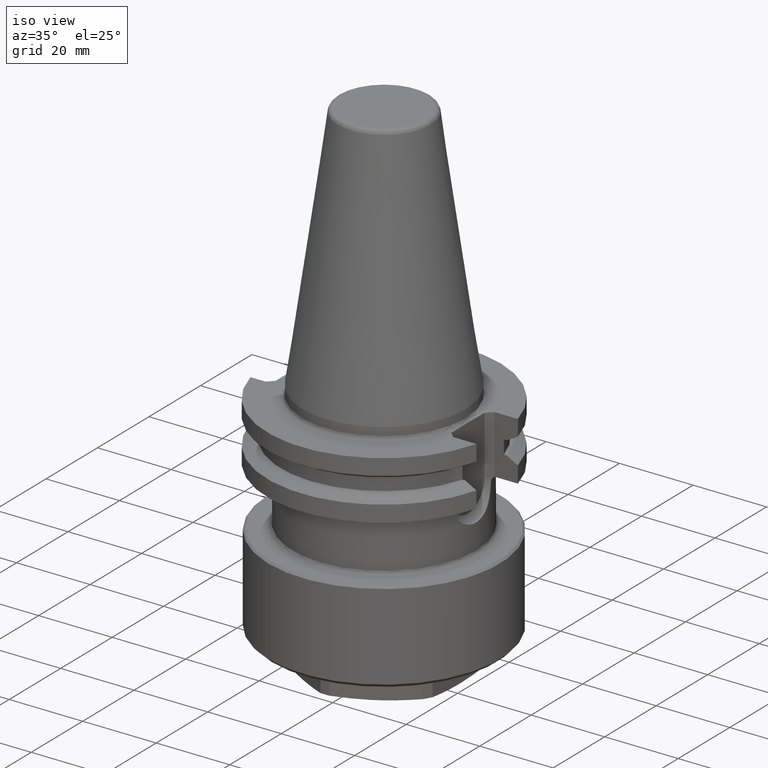
[diagram: clean part render]
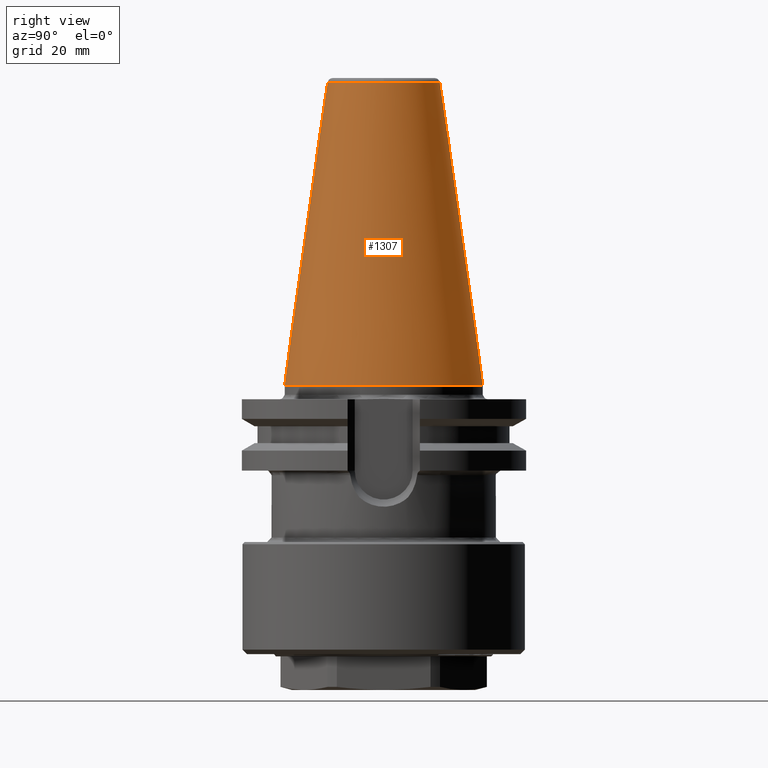
[diagram: tour spotlight — one face highlighted and labeled with its STEP entity id]
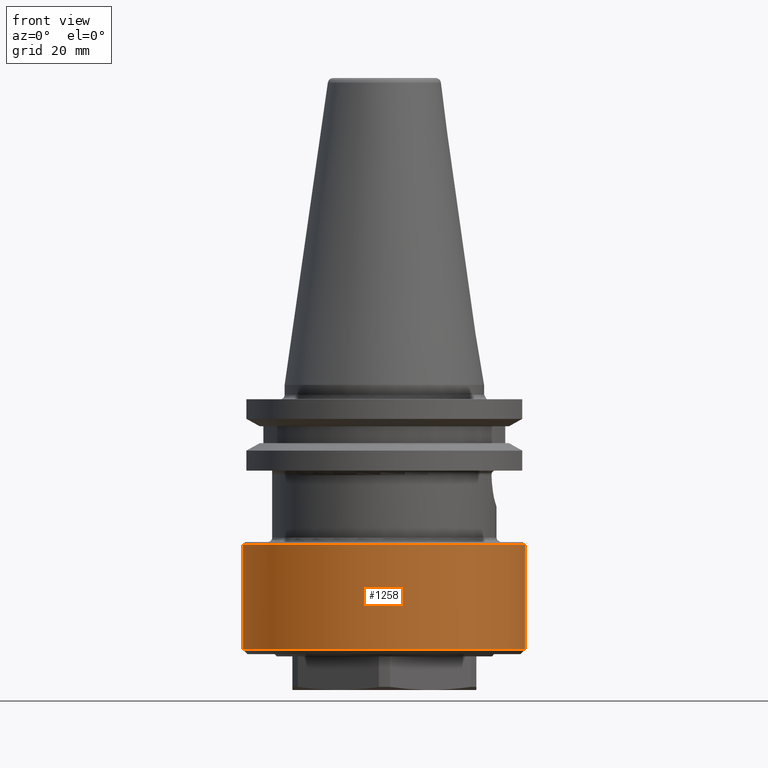
[diagram: tour spotlight — one face highlighted and labeled with its STEP entity id]
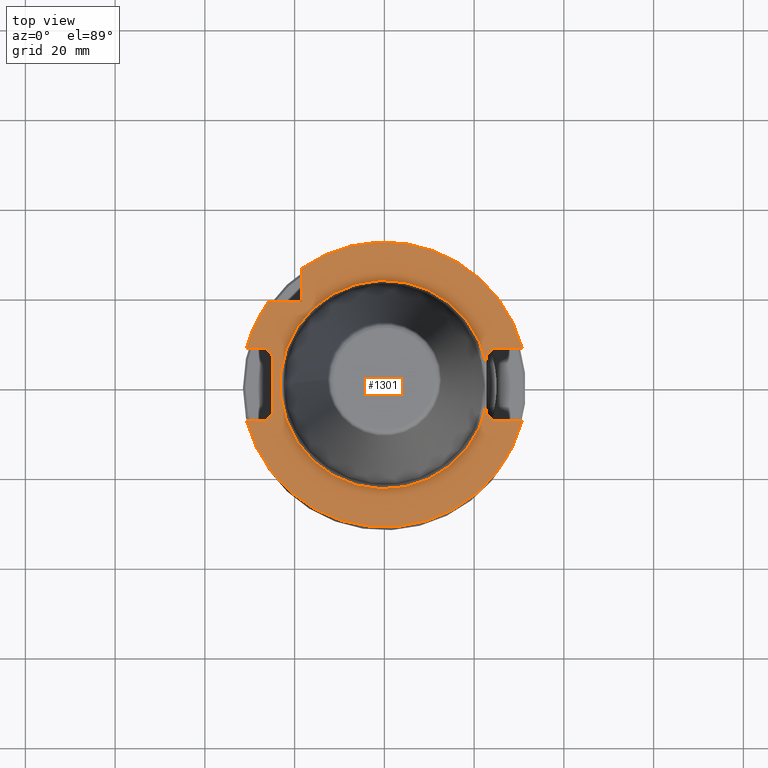
[diagram: tour spotlight — one face highlighted and labeled with its STEP entity id]
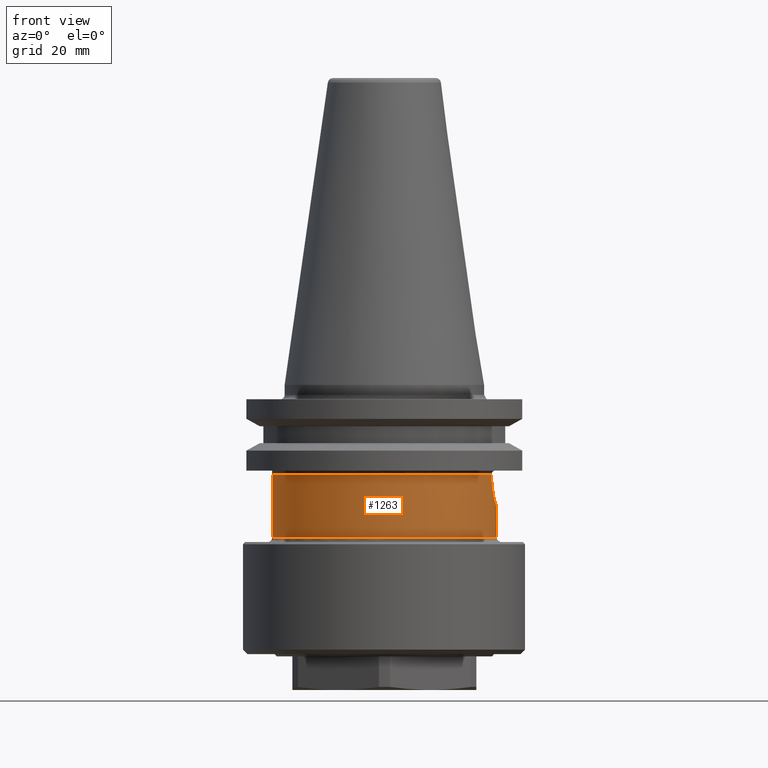
[diagram: tour spotlight — one face highlighted and labeled with its STEP entity id]
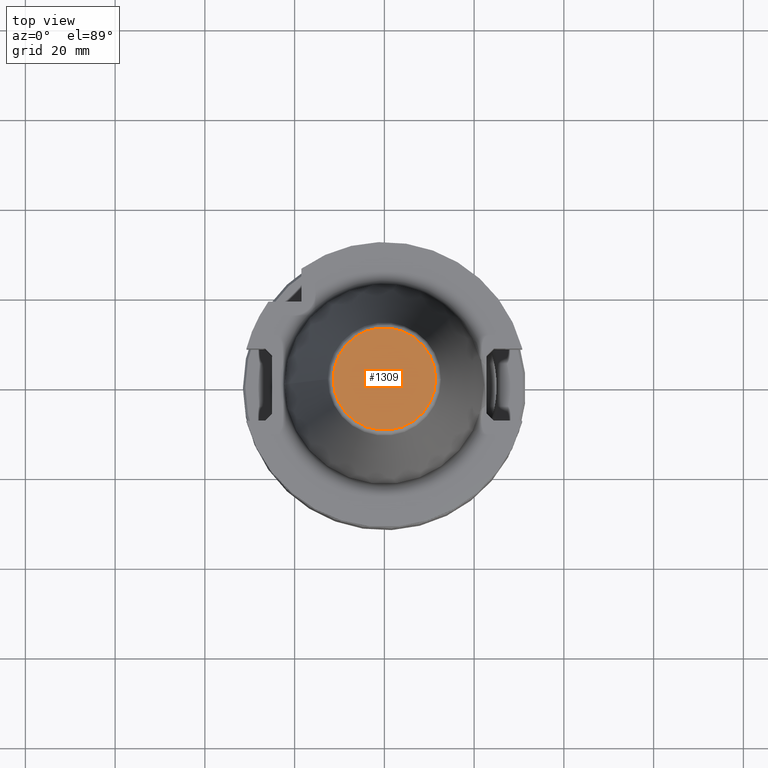
[diagram: tour spotlight — one face highlighted and labeled with its STEP entity id]
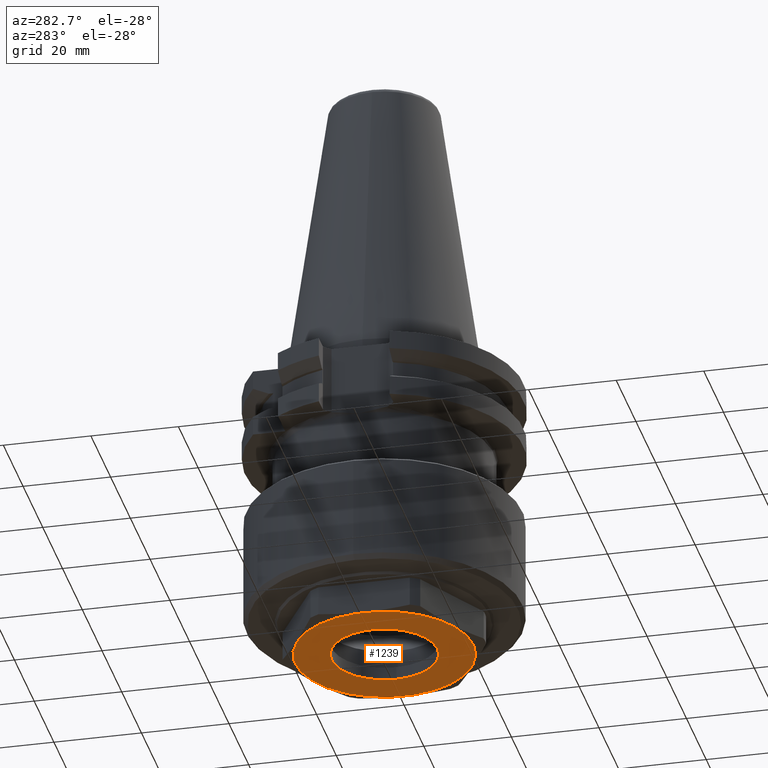
[diagram: tour spotlight — one face highlighted and labeled with its STEP entity id]
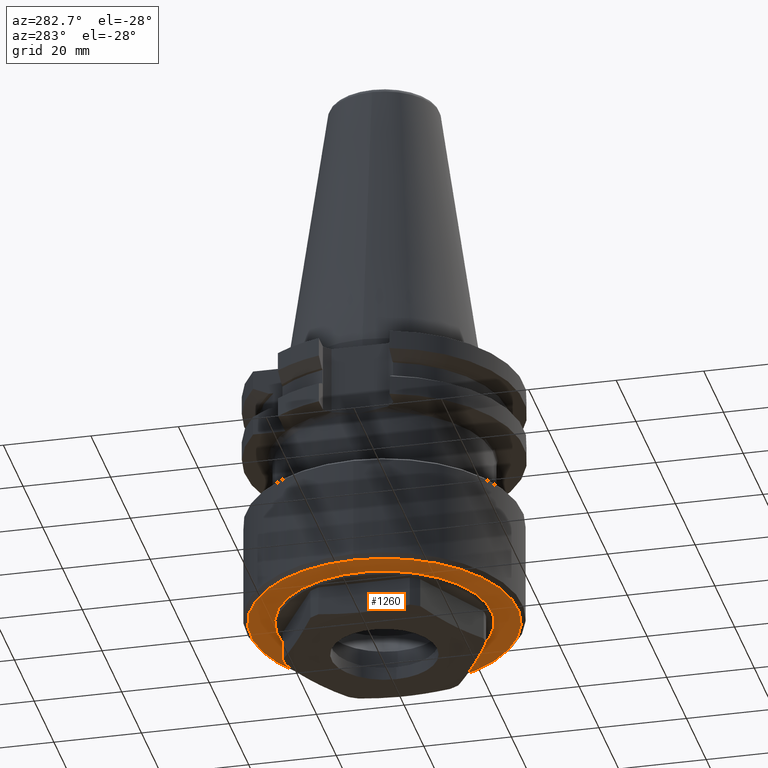
[diagram: tour spotlight — one face highlighted and labeled with its STEP entity id]
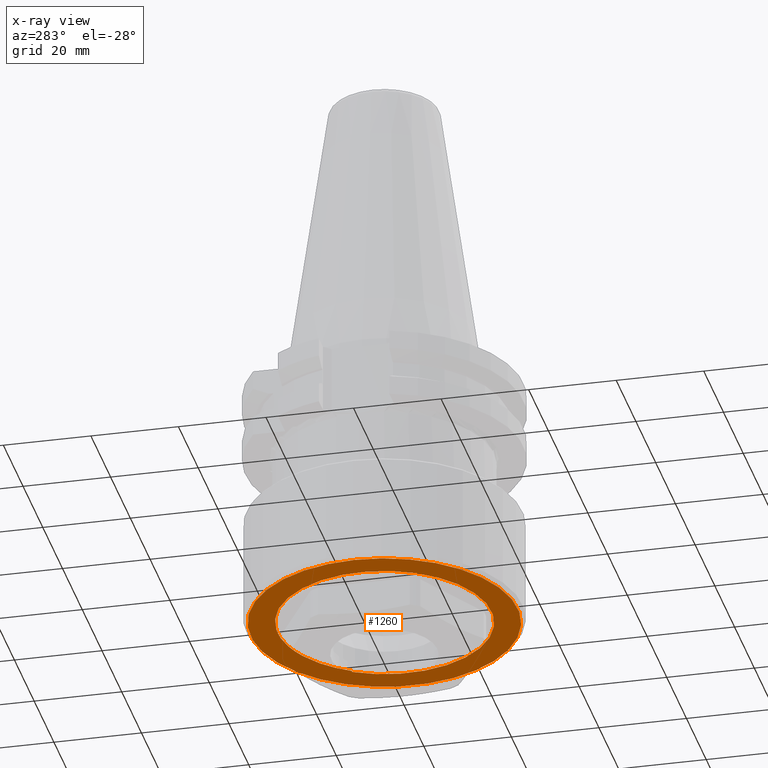
[diagram: x-ray of the same camera — body ghosted, this tour face saturated]
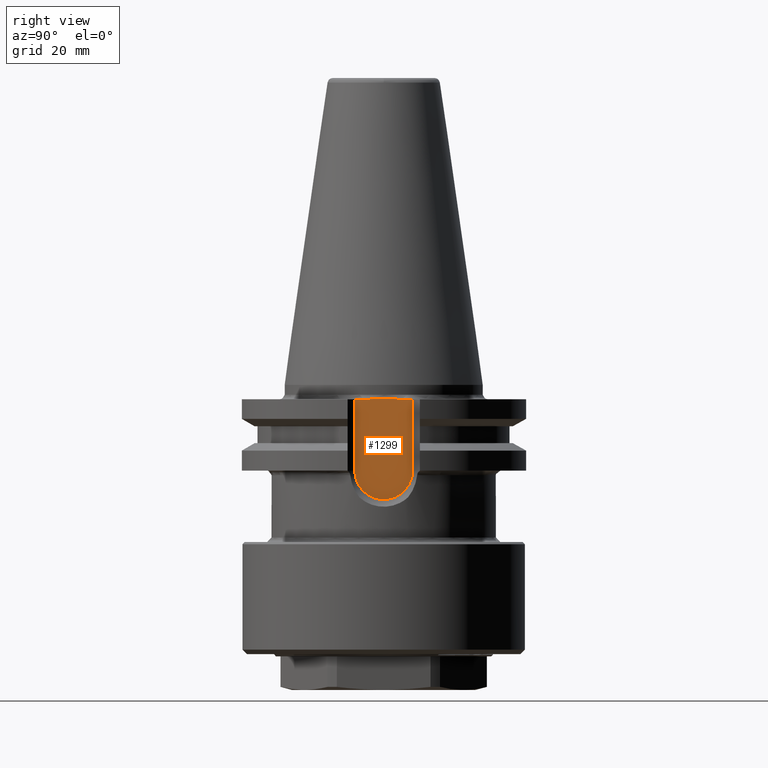
[diagram: tour spotlight — one face highlighted and labeled with its STEP entity id]
A machine part: a face-by-face anatomy tour. The part has 78 B-rep faces; the first image is the clean iso view, then the 8 largest visible faces are spotlighted one at a time (largest first), each with its STEP entity span.

Face 1 — right view, entity #1307. In plain terms, the highlighted conical surface has half-angle 8.13 deg.
Definition (entity closure, byte-faithful):
#262=CONICAL_SURFACE('',#1452,22.225,0.141897013516391);
#613=ORIENTED_EDGE('',*,*,#806,.T.);
#614=ORIENTED_EDGE('',*,*,#748,.F.);
#748=EDGE_CURVE('',#901,#901,#989,.T.);
#806=EDGE_CURVE('',#934,#934,#998,.F.);
#901=VERTEX_POINT('',#2254);
#934=VERTEX_POINT('',#2404);
#989=CIRCLE('',#1419,22.225);
#998=CIRCLE('',#1453,12.600759170466);
#1087=EDGE_LOOP('',(#613));
#1088=EDGE_LOOP('',(#614));
#1186=FACE_BOUND('',#1087,.T.);
#1187=FACE_BOUND('',#1088,.T.);
#1307=ADVANCED_FACE('',(#1186,#1187),#262,.T.);
#1419=AXIS2_PLACEMENT_3D('',#2253,#1695,#1696);
#1452=AXIS2_PLACEMENT_3D('',#2402,#1799,#1800);
#1453=AXIS2_PLACEMENT_3D('',#2403,#1801,#1802);
#1695=DIRECTION('',(0.,2.22044604925031E-16,-1.));
#1696=DIRECTION('',(-1.,0.,0.));
#1799=DIRECTION('',(0.,2.22044604925031E-16,-1.));
#1800=DIRECTION('',(-1.,0.,0.));
#1801=DIRECTION('',(0.,-2.22044604925031E-16,1.));
#1802=DIRECTION('',(1.,0.,0.));
#2253=CARTESIAN_POINT('',(0.,0.,0.));
#2254=CARTESIAN_POINT('',(-22.225,0.,0.));
#2402=CARTESIAN_POINT('',(0.,0.,0.));
#2403=CARTESIAN_POINT('',(0.,-1.49590796591326E-14,67.369705578675));
#2404=CARTESIAN_POINT('',(12.600759170466,-1.49590796591326E-14,67.369705578675));

Face 2 — front view, entity #1258. In plain terms, the highlighted cylindrical surface (bore or boss wall) has radius 31.5 mm, axis along (0, 0, -1).
Definition (entity closure, byte-faithful):
#34=CYLINDRICAL_SURFACE('',#1364,31.5);
#356=ORIENTED_EDGE('',*,*,#679,.T.);
#357=ORIENTED_EDGE('',*,*,#680,.F.);
#679=EDGE_CURVE('',#847,#847,#959,.T.);
#680=EDGE_CURVE('',#848,#848,#960,.T.);
#847=VERTEX_POINT('',#2059);
#848=VERTEX_POINT('',#2061);
#959=CIRCLE('',#1365,31.5);
#960=CIRCLE('',#1366,31.5);
#1029=EDGE_LOOP('',(#356));
#1030=EDGE_LOOP('',(#357));
#1128=FACE_BOUND('',#1029,.T.);
#1129=FACE_BOUND('',#1030,.T.);
#1258=ADVANCED_FACE('',(#1128,#1129),#34,.T.);
#1364=AXIS2_PLACEMENT_3D('',#2057,#1561,#1562);
#1365=AXIS2_PLACEMENT_3D('',#2058,#1563,#1564);
#1366=AXIS2_PLACEMENT_3D('',#2060,#1565,#1566);
#1561=DIRECTION('',(0.,2.22044604925031E-16,-1.));
#1562=DIRECTION('',(-1.,0.,0.));
#1563=DIRECTION('',(0.,2.22044604925031E-16,-1.));
#1564=DIRECTION('',(-1.,0.,0.));
#1565=DIRECTION('',(0.,2.22044604925031E-16,-1.));
#1566=DIRECTION('',(-1.,0.,0.));
#2057=CARTESIAN_POINT('',(0.,-1.26565424807268E-14,57.));
#2058=CARTESIAN_POINT('',(0.,7.88258347483861E-15,-35.5));
#2059=CARTESIAN_POINT('',(-31.5,7.88258347483861E-15,-35.5));
#2060=CARTESIAN_POINT('',(0.,1.31006316905769E-14,-59.));
#2061=CARTESIAN_POINT('',(-31.5,1.31006316905769E-14,-59.));

Face 3 — top view, entity #1301. In plain terms, the highlighted planar face has unit normal (0, -0, 1).
Definition (entity closure, byte-faithful):
#104=LINE('',#2278,#187);
#107=LINE('',#2295,#190);
#109=LINE('',#2299,#192);
#111=LINE('',#2308,#194);
#113=LINE('',#2321,#196);
#115=LINE('',#2329,#198);
#118=LINE('',#2337,#201);
#120=LINE('',#2341,#203);
#123=LINE('',#2349,#206);
#125=LINE('',#2363,#208);
#128=LINE('',#2380,#211);
#129=LINE('',#2381,#212);
#132=LINE('',#2386,#215);
#187=VECTOR('',#1716,1000.);
#190=VECTOR('',#1725,1000.);
#192=VECTOR('',#1729,1000.);
#194=VECTOR('',#1733,1000.);
#196=VECTOR('',#1737,1000.);
#198=VECTOR('',#1741,1000.);
#201=VECTOR('',#1750,1000.);
#203=VECTOR('',#1754,1000.);
#206=VECTOR('',#1763,1000.);
#208=VECTOR('',#1767,1000.);
#211=VECTOR('',#1778,1000.);
#212=VECTOR('',#1779,1000.);
#215=VECTOR('',#1784,1000.);
#570=ORIENTED_EDGE('',*,*,#802,.T.);
#571=ORIENTED_EDGE('',*,*,#799,.T.);
#572=ORIENTED_EDGE('',*,*,#796,.T.);
#573=ORIENTED_EDGE('',*,*,#798,.T.);
#574=ORIENTED_EDGE('',*,*,#792,.T.);
#575=ORIENTED_EDGE('',*,*,#788,.T.);
#576=ORIENTED_EDGE('',*,*,#786,.F.);
#577=ORIENTED_EDGE('',*,*,#784,.F.);
#578=ORIENTED_EDGE('',*,*,#782,.F.);
#579=ORIENTED_EDGE('',*,*,#781,.F.);
#580=ORIENTED_EDGE('',*,*,#778,.T.);
#581=ORIENTED_EDGE('',*,*,#775,.T.);
#582=ORIENTED_EDGE('',*,*,#771,.T.);
#583=ORIENTED_EDGE('',*,*,#768,.T.);
#584=ORIENTED_EDGE('',*,*,#766,.T.);
#585=ORIENTED_EDGE('',*,*,#764,.F.);
#586=ORIENTED_EDGE('',*,*,#760,.T.);
#760=EDGE_CURVE('',#911,#910,#104,.T.);
#764=EDGE_CURVE('',#911,#913,#992,.T.);
#766=EDGE_CURVE('',#914,#913,#107,.T.);
#768=EDGE_CURVE('',#915,#914,#109,.T.);
#771=EDGE_CURVE('',#917,#915,#111,.T.);
#775=EDGE_CURVE('',#919,#917,#113,.T.);
#778=EDGE_CURVE('',#920,#919,#115,.T.);
#781=EDGE_CURVE('',#920,#921,#993,.T.);
#782=EDGE_CURVE('',#921,#922,#118,.T.);
#784=EDGE_CURVE('',#922,#923,#120,.T.);
#786=EDGE_CURVE('',#923,#924,#994,.T.);
#788=EDGE_CURVE('',#925,#924,#123,.T.);
#792=EDGE_CURVE('',#928,#925,#125,.T.);
#796=EDGE_CURVE('',#931,#930,#995,.F.);
#798=EDGE_CURVE('',#930,#928,#128,.T.);
#799=EDGE_CURVE('',#933,#931,#129,.T.);
#802=EDGE_CURVE('',#910,#933,#132,.T.);
#910=VERTEX_POINT('',#2277);
#911=VERTEX_POINT('',#2279);
#913=VERTEX_POINT('',#2292);
#914=VERTEX_POINT('',#2296);
#915=VERTEX_POINT('',#2300);
#917=VERTEX_POINT('',#2309);
#919=VERTEX_POINT('',#2322);
#920=VERTEX_POINT('',#2330);
#921=VERTEX_POINT('',#2334);
#922=VERTEX_POINT('',#2338);
#923=VERTEX_POINT('',#2342);
#924=VERTEX_POINT('',#2346);
#925=VERTEX_POINT('',#2350);
#928=VERTEX_POINT('',#2364);
#930=VERTEX_POINT('',#2374);
#931=VERTEX_POINT('',#2375);
#933=VERTEX_POINT('',#2382);
#992=CIRCLE('',#1426,31.775);
#993=CIRCLE('',#1433,31.775);
#994=CIRCLE('',#1437,31.775);
#995=CIRCLE('',#1441,23.225);
#1080=EDGE_LOOP('',(#570,#571,#572,#573,#574,#575,#576,#577,#578,#579,#580,
#581,#582,#583,#584,#585,#586));
#1179=FACE_BOUND('',#1080,.T.);
#1235=PLANE('',#1445);
#1301=ADVANCED_FACE('',(#1179),#1235,.T.);
#1426=AXIS2_PLACEMENT_3D('',#2291,#1720,#1721);
#1433=AXIS2_PLACEMENT_3D('',#2335,#1746,#1747);
#1437=AXIS2_PLACEMENT_3D('',#2345,#1758,#1759);
#1441=AXIS2_PLACEMENT_3D('',#2376,#1772,#1773);
#1445=AXIS2_PLACEMENT_3D('',#2387,#1785,#1786);
#1716=DIRECTION('',(-1.,4.06762746091115E-15,6.77396049405168E-31));
#1720=DIRECTION('',(0.,2.22044604925031E-16,-1.));
#1721=DIRECTION('',(-1.,0.,0.));
#1725=DIRECTION('',(-1.,-3.1105386465791E-15,-5.18008743662773E-31));
#1729=DIRECTION('',(-0.707106781186548,-0.707106781186547,-1.17756934401283E-16));
#1733=DIRECTION('',(0.,-1.,-1.66533453693773E-16));
#1737=DIRECTION('',(0.707106781186548,-0.707106781186547,-1.17756934401283E-16));
#1741=DIRECTION('',(1.,2.51235813762158E-15,4.18391677573779E-31));
#1746=DIRECTION('',(0.,2.22044604925031E-16,-1.));
#1747=DIRECTION('',(-1.,0.,0.));
#1750=DIRECTION('',(1.,1.92822466770596E-16,3.21113913410603E-32));
#1754=DIRECTION('',(0.,1.,1.66533453693773E-16));
#1758=DIRECTION('',(0.,2.22044604925031E-16,-1.));
#1759=DIRECTION('',(-1.,0.,0.));
#1763=DIRECTION('',(1.,-1.91417762866407E-15,-3.18774611484785E-31));
#1767=DIRECTION('',(0.707106781186553,0.707106781186542,1.17756934401282E-16));
#1772=DIRECTION('',(0.,-2.22044604925031E-16,1.));
#1773=DIRECTION('',(1.,0.,0.));
#1778=DIRECTION('',(0.,1.,1.66533453693773E-16));
#1779=DIRECTION('',(0.,1.,1.66533453693773E-16));
#1784=DIRECTION('',(-0.707106781186553,0.707106781186542,1.17756934401282E-16));
#1785=DIRECTION('',(0.,-2.22044604925031E-16,1.));
#1786=DIRECTION('',(1.,0.,0.));
#2277=CARTESIAN_POINT('',(24.4000000000001,-8.04999999999999,-3.20000000000001));
#2278=CARTESIAN_POINT('',(-22.225,-8.0499999999998,-3.2));
#2279=CARTESIAN_POINT('',(30.7383819515602,-8.05000000000001,-3.2));
#2291=CARTESIAN_POINT('',(0.,7.10542735760101E-16,-3.2));
#2292=CARTESIAN_POINT('',(-30.7383819515602,-8.05000000000001,-3.2));
#2295=CARTESIAN_POINT('',(-22.225,-8.04999999999998,-3.2));
#2296=CARTESIAN_POINT('',(-26.6,-8.05,-3.20000000000001));
#2299=CARTESIAN_POINT('',(-20.3875,-1.8375,-3.2));
#2300=CARTESIAN_POINT('',(-25.,-6.44999999999998,-3.20000000000001));
#2308=CARTESIAN_POINT('',(-25.,7.105427357601E-16,-3.2));
#2309=CARTESIAN_POINT('',(-25.,6.44999999999998,-3.20000000000001));
#2321=CARTESIAN_POINT('',(-20.3875,1.8375,-3.2));
#2322=CARTESIAN_POINT('',(-26.6,8.05,-3.20000000000001));
#2329=CARTESIAN_POINT('',(-22.225,8.05000000000001,-3.2));
#2330=CARTESIAN_POINT('',(-30.7383819515602,8.04999999999999,-3.2));
#2334=CARTESIAN_POINT('',(-25.8340981069593,18.5,-3.2));
#2335=CARTESIAN_POINT('',(0.,7.10542735760101E-16,-3.2));
#2337=CARTESIAN_POINT('',(-22.225,18.5,-3.2));
#2338=CARTESIAN_POINT('',(-18.5,18.5,-3.20000000000001));
#2341=CARTESIAN_POINT('',(-18.5,7.105427357601E-16,-3.2));
#2342=CARTESIAN_POINT('',(-18.5,25.8340981069593,-3.2));
#2345=CARTESIAN_POINT('',(0.,7.10542735760101E-16,-3.2));
#2346=CARTESIAN_POINT('',(30.7383819515602,8.04999999999997,-3.2));
#2349=CARTESIAN_POINT('',(-22.225,8.05000000000008,-3.2));
#2350=CARTESIAN_POINT('',(24.4000000000001,8.04999999999999,-3.20000000000001));
#2363=CARTESIAN_POINT('',(-2.9375000000003,-19.2875,-3.2));
#2364=CARTESIAN_POINT('',(22.8,6.44999999999998,-3.20000000000001));
#2374=CARTESIAN_POINT('',(22.8,4.422739535627,-3.2));
#2375=CARTESIAN_POINT('',(22.8,-4.422739535627,-3.2));
#2376=CARTESIAN_POINT('',(0.,7.105427357601E-16,-3.2));
#2380=CARTESIAN_POINT('',(22.8,7.105427357601E-16,-3.2));
#2381=CARTESIAN_POINT('',(22.8,7.105427357601E-16,-3.2));
#2382=CARTESIAN_POINT('',(22.8,-6.44999999999998,-3.20000000000001));
#2386=CARTESIAN_POINT('',(-2.9375000000003,19.2875,-3.2));
#2387=CARTESIAN_POINT('',(-22.225,7.105427357601E-16,-3.2));

Face 4 — front view, entity #1263. In plain terms, the highlighted cylindrical surface (bore or boss wall) has radius 25 mm, axis along (0, 0, -1).
Definition (entity closure, byte-faithful):
#35=CYLINDRICAL_SURFACE('',#1374,25.);
#225=B_SPLINE_CURVE_WITH_KNOTS('',3,(#2075,#2076,#2077,#2078),
 .UNSPECIFIED.,.F.,.F.,(4,4),(0.00180054933040777,0.00719586275076196),
 .UNSPECIFIED.);
#226=B_SPLINE_CURVE_WITH_KNOTS('',3,(#2085,#2086,#2087,#2088),
 .UNSPECIFIED.,.F.,.F.,(4,4),(0.0011394304077884,0.00655558256846811),
 .UNSPECIFIED.);
#227=B_SPLINE_CURVE_WITH_KNOTS('',3,(#2090,#2091,#2092,#2093,#2094,#2095,
#2096),.UNSPECIFIED.,.F.,.F.,(4,1,1,1,4),(0.,0.00299143826572748,0.00598287653145496,
0.00897431479718244,0.0119657530629099),.UNSPECIFIED.);
#369=ORIENTED_EDGE('',*,*,#684,.T.);
#370=ORIENTED_EDGE('',*,*,#685,.F.);
#371=ORIENTED_EDGE('',*,*,#686,.T.);
#372=ORIENTED_EDGE('',*,*,#687,.T.);
#373=ORIENTED_EDGE('',*,*,#688,.F.);
#374=ORIENTED_EDGE('',*,*,#689,.F.);
#684=EDGE_CURVE('',#852,#852,#964,.F.);
#685=EDGE_CURVE('',#853,#854,#225,.T.);
#686=EDGE_CURVE('',#853,#855,#965,.T.);
#687=EDGE_CURVE('',#855,#856,#966,.T.);
#688=EDGE_CURVE('',#857,#856,#226,.T.);
#689=EDGE_CURVE('',#854,#857,#227,.T.);
#852=VERTEX_POINT('',#2074);
#853=VERTEX_POINT('',#2079);
#854=VERTEX_POINT('',#2080);
#855=VERTEX_POINT('',#2082);
#856=VERTEX_POINT('',#2084);
#857=VERTEX_POINT('',#2089);
#964=CIRCLE('',#1375,25.);
#965=CIRCLE('',#1376,25.);
#966=CIRCLE('',#1377,25.);
#1039=EDGE_LOOP('',(#369));
#1040=EDGE_LOOP('',(#370,#371,#372,#373,#374));
#1138=FACE_BOUND('',#1039,.T.);
#1139=FACE_BOUND('',#1040,.T.);
#1263=ADVANCED_FACE('',(#1138,#1139),#35,.T.);
#1374=AXIS2_PLACEMENT_3D('',#2072,#1581,#1582);
#1375=AXIS2_PLACEMENT_3D('',#2073,#1583,#1584);
#1376=AXIS2_PLACEMENT_3D('',#2081,#1585,#1586);
#1377=AXIS2_PLACEMENT_3D('',#2083,#1587,#1588);
#1581=DIRECTION('',(0.,2.22044604925031E-16,-1.));
#1582=DIRECTION('',(-1.,0.,0.));
#1583=DIRECTION('',(0.,2.22044604925031E-16,-1.));
#1584=DIRECTION('',(-1.,0.,0.));
#1585=DIRECTION('',(0.,2.22044604925031E-16,-1.));
#1586=DIRECTION('',(-1.,0.,0.));
#1587=DIRECTION('',(0.,2.22044604925031E-16,-1.));
#1588=DIRECTION('',(-1.,0.,0.));
#2072=CARTESIAN_POINT('',(0.,-1.26565424807268E-14,57.));
#2073=CARTESIAN_POINT('',(0.,7.54951656745107E-15,-34.));
#2074=CARTESIAN_POINT('',(-25.,7.54951656745107E-15,-34.));
#2075=CARTESIAN_POINT('',(23.8647856900596,-7.44795300519035,-20.1));
#2076=CARTESIAN_POINT('',(23.921788854132,-7.26530304844466,-21.8887348559009));
#2077=CARTESIAN_POINT('',(24.1462303265032,-6.58160338681307,-23.64107808554));
#2078=CARTESIAN_POINT('',(24.4000000000001,-5.4442630355261,-25.0297976356705));
#2079=CARTESIAN_POINT('',(23.8647856900596,-7.44795300519035,-20.1));
#2080=CARTESIAN_POINT('',(24.4000000000001,-5.4442630355261,-25.0297976356705));
#2081=CARTESIAN_POINT('',(0.,4.46309655899313E-15,-20.1));
#2082=CARTESIAN_POINT('',(-25.,4.46309655899313E-15,-20.1));
#2083=CARTESIAN_POINT('',(0.,4.46309655899313E-15,-20.1));
#2084=CARTESIAN_POINT('',(23.8647856900596,7.44795300519036,-20.1));
#2085=CARTESIAN_POINT('',(24.4000000000001,5.44426303552611,-25.0297976356705));
#2086=CARTESIAN_POINT('',(24.1472702791164,6.57694254592492,-23.6467690828339));
#2087=CARTESIAN_POINT('',(23.9217943988583,7.26528528199206,-21.8889088470347));
#2088=CARTESIAN_POINT('',(23.8647856900596,7.44795300519036,-20.1));
#2089=CARTESIAN_POINT('',(24.4000000000001,5.44426303552611,-25.0297976356705));
#2090=CARTESIAN_POINT('',(24.4000000000001,-5.4442630355261,-25.0297976356705));
#2091=CARTESIAN_POINT('',(24.5639638420221,-4.70941284198636,-25.7044779521237));
#2092=CARTESIAN_POINT('',(24.8726490889182,-3.01020183473565,-26.7658384079956));
#2093=CARTESIAN_POINT('',(25.0635207173429,-0.00144342295027997,-27.3415694549555));
#2094=CARTESIAN_POINT('',(24.8732676943357,3.0057670805384,-26.7678826933792));
#2095=CARTESIAN_POINT('',(24.5639763529273,4.70935677083673,-25.7045294321415));
#2096=CARTESIAN_POINT('',(24.4000000000001,5.44426303552611,-25.0297976356705));

Face 5 — top view, entity #1309. In plain terms, the highlighted planar face has unit normal (0, -0, 1).
Definition (entity closure, byte-faithful):
#617=ORIENTED_EDGE('',*,*,#807,.T.);
#807=EDGE_CURVE('',#935,#935,#999,.T.);
#935=VERTEX_POINT('',#2407);
#999=CIRCLE('',#1455,11.4128197710998);
#1091=EDGE_LOOP('',(#617));
#1190=FACE_BOUND('',#1091,.T.);
#1236=PLANE('',#1456);
#1309=ADVANCED_FACE('',(#1190),#1236,.T.);
#1455=AXIS2_PLACEMENT_3D('',#2406,#1805,#1806);
#1456=AXIS2_PLACEMENT_3D('',#2408,#1807,#1808);
#1805=DIRECTION('',(0.,-2.22044604925031E-16,1.));
#1806=DIRECTION('',(1.,0.,0.));
#1807=DIRECTION('',(0.,-2.22044604925031E-16,1.));
#1808=DIRECTION('',(1.,0.,0.));
#2406=CARTESIAN_POINT('',(0.,-1.51878509768721E-14,68.4));
#2407=CARTESIAN_POINT('',(11.4128197710998,-1.51878509768721E-14,68.4));
#2408=CARTESIAN_POINT('',(-12.4535742963303,-1.51878509768721E-14,68.4));

Face 6 — auxiliary view, entity #1239. In plain terms, the highlighted planar face has unit normal (-0, 0, 1).
Definition (entity closure, byte-faithful):
#265=ORIENTED_EDGE('',*,*,#631,.F.);
#266=ORIENTED_EDGE('',*,*,#632,.T.);
#631=EDGE_CURVE('',#814,#814,#942,.F.);
#632=EDGE_CURVE('',#815,#815,#943,.T.);
#814=VERTEX_POINT('',#1838);
#815=VERTEX_POINT('',#1840);
#942=CIRCLE('',#1331,12.0999999999999);
#943=CIRCLE('',#1332,20.3875644347018);
#1006=EDGE_LOOP('',(#265));
#1007=EDGE_LOOP('',(#266));
#1105=FACE_BOUND('',#1006,.T.);
#1106=FACE_BOUND('',#1007,.T.);
#1204=PLANE('',#1330);
#1239=ADVANCED_FACE('',(#1105,#1106),#1204,.F.);
#1330=AXIS2_PLACEMENT_3D('',#1836,#1472,#1473);
#1331=AXIS2_PLACEMENT_3D('',#1837,#1474,#1475);
#1332=AXIS2_PLACEMENT_3D('',#1839,#1476,#1477);
#1472=DIRECTION('',(-2.55102676732492E-17,4.69423988459088E-17,1.));
#1473=DIRECTION('',(2.77555756156289E-17,1.,-5.78143195926352E-16));
#1474=DIRECTION('',(-2.55102676732492E-17,4.69423988459088E-17,1.));
#1475=DIRECTION('',(0.,-1.,4.69423988459088E-17));
#1476=DIRECTION('',(2.55102676732492E-17,-4.69423988459088E-17,-1.));
#1477=DIRECTION('',(-2.77555756156289E-17,-1.,5.78143195926352E-16));
#1836=CARTESIAN_POINT('',(-8.11735004941373E-17,-20.3875644347018,-68.));
#1837=CARTESIAN_POINT('',(0.,0.,-68.));
#1838=CARTESIAN_POINT('',(0.,-12.0999999999999,-68.));
#1839=CARTESIAN_POINT('',(4.84695085791734E-16,6.51883311130066E-15,-68.));
#1840=CARTESIAN_POINT('',(-8.11735004941373E-17,-20.3875644347018,-68.));

Face 7 — auxiliary view, entity #1260. An x-ray twin of the same camera follows (body ghosted, this face saturated) — the face is partly hidden behind the body. In plain terms, the highlighted planar face has unit normal (0, -0, 1).
Definition (entity closure, byte-faithful):
#69=LINE('',#2032,#152);
#152=VECTOR('',#1551,1000.);
#223=B_SPLINE_CURVE_WITH_KNOTS('',3,(#1959,#1960,#1961,#1962,#1963,#1964),
 .UNSPECIFIED.,.F.,.F.,(4,1,1,4),(0.0299331012288584,0.03457786875155,0.0392226362742417,
0.0485121713196251),.UNSPECIFIED.);
#224=B_SPLINE_CURVE_WITH_KNOTS('',3,(#2052,#2053,#2054,#2055,#2056),
 .UNSPECIFIED.,.F.,.F.,(4,1,4),(0.,0.00951308695350754,0.0190261739070151),
 .UNSPECIFIED.);
#360=ORIENTED_EDGE('',*,*,#678,.F.);
#361=ORIENTED_EDGE('',*,*,#670,.F.);
#362=ORIENTED_EDGE('',*,*,#677,.F.);
#363=ORIENTED_EDGE('',*,*,#674,.F.);
#364=ORIENTED_EDGE('',*,*,#681,.T.);
#670=EDGE_CURVE('',#840,#842,#223,.T.);
#674=EDGE_CURVE('',#844,#845,#69,.T.);
#677=EDGE_CURVE('',#845,#840,#958,.F.);
#678=EDGE_CURVE('',#842,#844,#224,.T.);
#681=EDGE_CURVE('',#849,#849,#961,.T.);
#840=VERTEX_POINT('',#1957);
#842=VERTEX_POINT('',#1965);
#844=VERTEX_POINT('',#2031);
#845=VERTEX_POINT('',#2033);
#849=VERTEX_POINT('',#2064);
#958=CIRCLE('',#1363,24.5);
#961=CIRCLE('',#1368,30.5);
#1033=EDGE_LOOP('',(#360,#361,#362,#363));
#1034=EDGE_LOOP('',(#364));
#1132=FACE_BOUND('',#1033,.T.);
#1133=FACE_BOUND('',#1034,.T.);
#1213=PLANE('',#1369);
#1260=ADVANCED_FACE('',(#1132,#1133),#1213,.F.);
#1363=AXIS2_PLACEMENT_3D('',#2039,#1559,#1560);
#1368=AXIS2_PLACEMENT_3D('',#2063,#1569,#1570);
#1369=AXIS2_PLACEMENT_3D('',#2065,#1571,#1572);
#1551=DIRECTION('',(0.866025403784436,0.500000000000005,1.11022302462517E-16));
#1559=DIRECTION('',(0.,-2.22044604925031E-16,1.));
#1560=DIRECTION('',(0.,-1.,-2.22044604925031E-16));
#1569=DIRECTION('',(0.,2.22044604925031E-16,-1.));
#1570=DIRECTION('',(-1.,0.,0.));
#1571=DIRECTION('',(0.,-2.22044604925031E-16,1.));
#1572=DIRECTION('',(1.,0.,0.));
#1957=CARTESIAN_POINT('',(-11.7806060492876,21.4817904540448,-60.));
#1959=CARTESIAN_POINT('',(-11.780606049288,21.4817904540457,-60.));
#1960=CARTESIAN_POINT('',(-10.4259766631444,22.1938330578454,-60.));
#1961=CARTESIAN_POINT('',(-7.59490820234353,23.3614127642714,-60.));
#1962=CARTESIAN_POINT('',(-1.48916979430974,24.6158866430297,-60.));
#1963=CARTESIAN_POINT('',(3.19873105296531,24.2306030788717,-60.));
#1964=CARTESIAN_POINT('',(6.18133702213197,23.3869017319272,-60.));
#1965=CARTESIAN_POINT('',(6.18133702213197,23.3869017319272,-60.));
#2031=CARTESIAN_POINT('',(20.8538917231292,12.0400000000001,-60.));
#2032=CARTESIAN_POINT('',(1.73472347597682E-15,1.03180470980276E-14,-60.));
#2033=CARTESIAN_POINT('',(21.2176223927187,12.2500000000002,-60.));
#2039=CARTESIAN_POINT('',(6.7525131141108E-15,7.02886580395339E-15,-60.));
#2052=CARTESIAN_POINT('',(6.18133702213197,23.3869017319272,-60.));
#2053=CARTESIAN_POINT('',(9.23274355398891,22.5237385023162,-60.));
#2054=CARTESIAN_POINT('',(15.0116317400169,19.647397315512,-60.));
#2055=CARTESIAN_POINT('',(19.2682784285051,14.7863627874458,-60.));
#2056=CARTESIAN_POINT('',(20.8538917231293,12.04,-60.));
#2063=CARTESIAN_POINT('',(0.,1.33226762955019E-14,-60.));
#2064=CARTESIAN_POINT('',(-30.5,1.33226762955019E-14,-60.));
#2065=CARTESIAN_POINT('',(0.,1.33226762955019E-14,-60.));

Face 8 — right view, entity #1299. In plain terms, the highlighted planar face has unit normal (1, 0, 0).
Definition (entity closure, byte-faithful):
#126=LINE('',#2365,#209);
#128=LINE('',#2380,#211);
#129=LINE('',#2381,#212);
#130=LINE('',#2383,#213);
#209=VECTOR('',#1768,1000.);
#211=VECTOR('',#1778,1000.);
#212=VECTOR('',#1779,1000.);
#213=VECTOR('',#1780,1000.);
#248=B_SPLINE_CURVE_WITH_KNOTS('',3,(#2369,#2370,#2371,#2372,#2373),
 .UNSPECIFIED.,.F.,.F.,(4,1,4),(0.0298364759265636,0.0342920279777607,0.0387475800289578),
 .UNSPECIFIED.);
#560=ORIENTED_EDGE('',*,*,#797,.T.);
#561=ORIENTED_EDGE('',*,*,#793,.T.);
#562=ORIENTED_EDGE('',*,*,#798,.F.);
#563=ORIENTED_EDGE('',*,*,#795,.T.);
#564=ORIENTED_EDGE('',*,*,#799,.F.);
#565=ORIENTED_EDGE('',*,*,#800,.F.);
#793=EDGE_CURVE('',#929,#928,#126,.T.);
#795=EDGE_CURVE('',#930,#931,#248,.T.);
#797=EDGE_CURVE('',#932,#929,#996,.T.);
#798=EDGE_CURVE('',#930,#928,#128,.T.);
#799=EDGE_CURVE('',#933,#931,#129,.T.);
#800=EDGE_CURVE('',#932,#933,#130,.T.);
#928=VERTEX_POINT('',#2364);
#929=VERTEX_POINT('',#2366);
#930=VERTEX_POINT('',#2374);
#931=VERTEX_POINT('',#2375);
#932=VERTEX_POINT('',#2379);
#933=VERTEX_POINT('',#2382);
#996=CIRCLE('',#1443,6.44999999999998);
#1078=EDGE_LOOP('',(#560,#561,#562,#563,#564,#565));
#1177=FACE_BOUND('',#1078,.T.);
#1233=PLANE('',#1442);
#1299=ADVANCED_FACE('',(#1177),#1233,.T.);
#1442=AXIS2_PLACEMENT_3D('',#2377,#1774,#1775);
#1443=AXIS2_PLACEMENT_3D('',#2378,#1776,#1777);
#1768=DIRECTION('',(0.,-2.22044604925031E-16,1.));
#1774=DIRECTION('',(1.,0.,0.));
#1775=DIRECTION('',(0.,2.22044604925031E-16,-1.));
#1776=DIRECTION('',(1.,0.,0.));
#1777=DIRECTION('',(0.,2.22044604925031E-16,-1.));
#1778=DIRECTION('',(0.,1.,1.66533453693773E-16));
#1779=DIRECTION('',(0.,1.,1.66533453693773E-16));
#1780=DIRECTION('',(0.,-2.22044604925031E-16,1.));
#2364=CARTESIAN_POINT('',(22.8,6.44999999999998,-3.20000000000001));
#2365=CARTESIAN_POINT('',(22.8,6.45000000000001,-128.624868283048));
#2366=CARTESIAN_POINT('',(22.8,6.44999999999999,-19.1));
#2369=CARTESIAN_POINT('',(22.8,4.422739535627,-3.2));
#2370=CARTESIAN_POINT('',(22.8,2.95836448070999,-3.2));
#2371=CARTESIAN_POINT('',(22.8,0.0520169945135358,-3.01040654666143));
#2372=CARTESIAN_POINT('',(22.8,-2.93821472964158,-3.2));
#2373=CARTESIAN_POINT('',(22.8,-4.422739535627,-3.2));
#2374=CARTESIAN_POINT('',(22.8,4.422739535627,-3.2));
#2375=CARTESIAN_POINT('',(22.8,-4.422739535627,-3.2));
#2377=CARTESIAN_POINT('',(22.8,-6.44999999999995,-128.624868283048));
#2378=CARTESIAN_POINT('',(22.8,4.2410519540681E-15,-19.1));
#2379=CARTESIAN_POINT('',(22.8,-6.44999999999998,-19.1));
#2380=CARTESIAN_POINT('',(22.8,7.105427357601E-16,-3.2));
#2381=CARTESIAN_POINT('',(22.8,7.105427357601E-16,-3.2));
#2382=CARTESIAN_POINT('',(22.8,-6.44999999999998,-3.20000000000001));
#2383=CARTESIAN_POINT('',(22.8,-6.44999999999995,-128.624868283048));